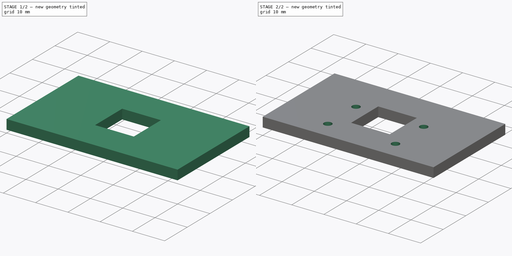
[diagram: build sequence overview — one tinted view per stage of 2, left to right]
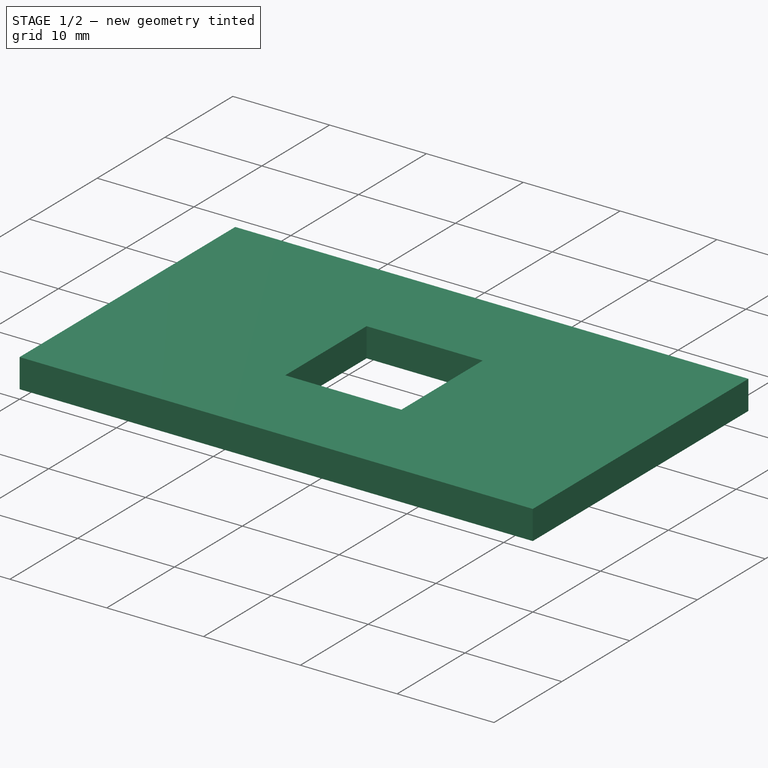
[diagram: stage 1 of 2 — iso view after this stage's code; geometry added in this stage tinted green]
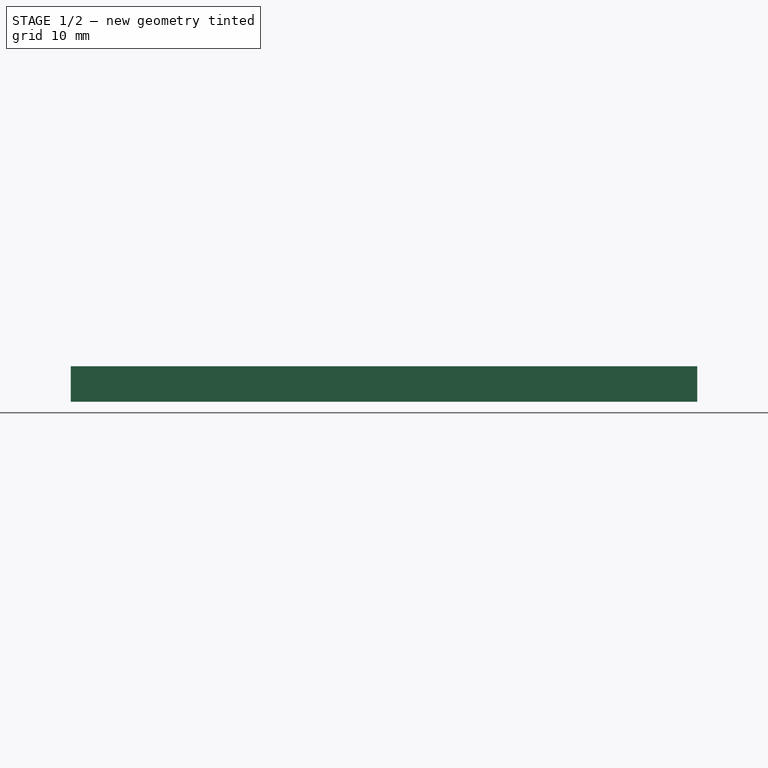
[diagram: stage 1 of 2 — front view after this stage's code; geometry added in this stage tinted green]
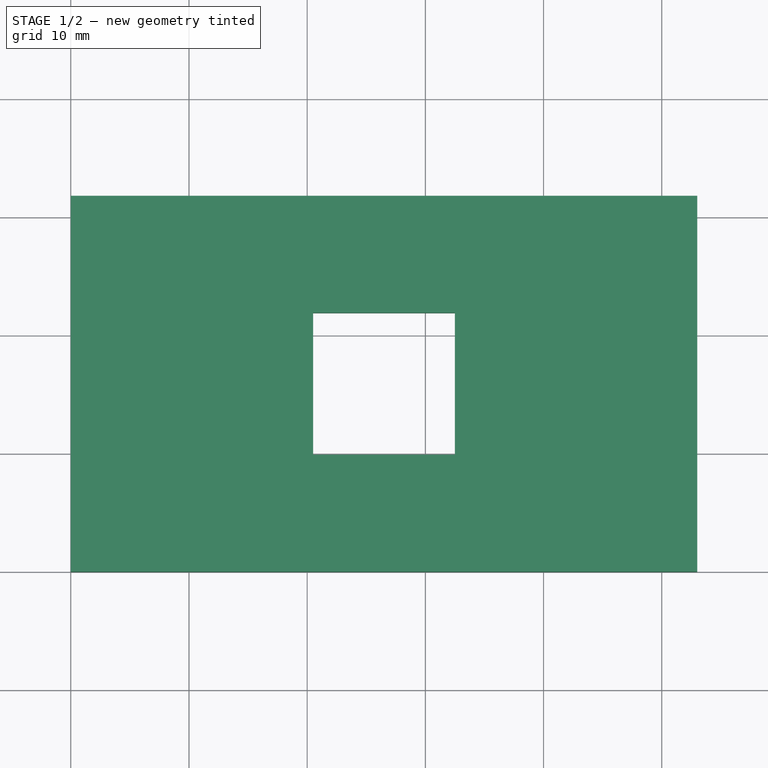
[diagram: stage 1 of 2 — top view after this stage's code; geometry added in this stage tinted green]
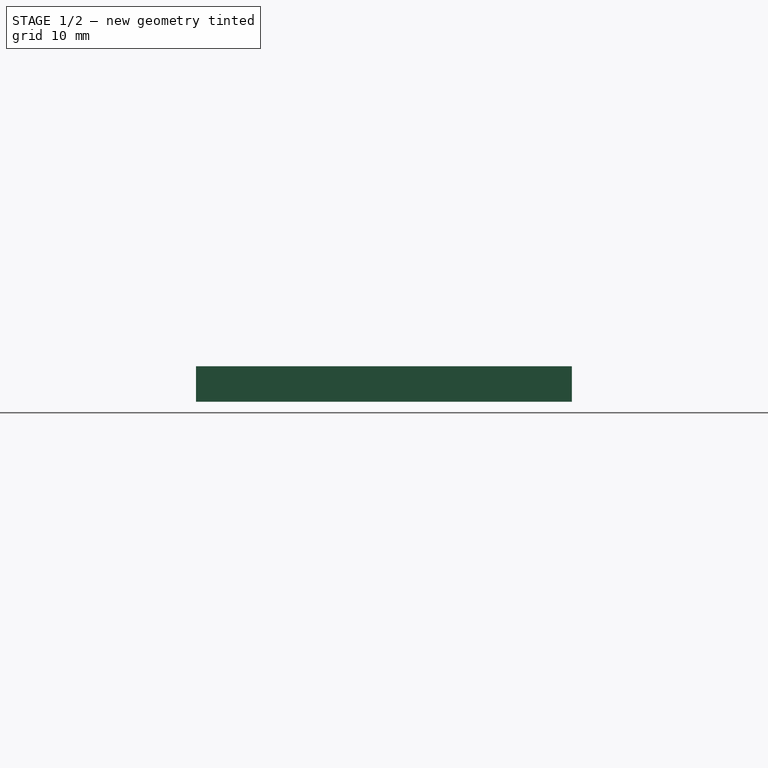
[diagram: stage 1 of 2 — right view after this stage's code; geometry added in this stage tinted green]
FCSTD DOCUMENT  (FreeCAD 1.0R39319 (Git))
Label: camera_plate
License: All rights reserved
LicenseURL: http://en.wikipedia.org/wiki/All_rights_reserved
objects: Sketcher::SketchObject×4, PartDesign::Pad×2, Spreadsheet::Sheet×1, PartDesign::Pocket×1, PartDesign::Hole×1, PartDesign::Body×1
note: 21 computed .brp shape members not serialized (recipe doc carries the construction recipe); baked Part::Feature solids carry a one-line shape summary decoded from their .brp

FEATURE [Sketcher::SketchObject] Sketch  label="camera_mnt_base"
  ArcFitTolerance = 1e-06
  AttachmentSupport = -> [XY_Plane]
  FullyConstrained = true
  MakeInternals = false
  MapMode = 5
  expr: Constraints[10] = Spreadsheet.x_len
  expr: Constraints[11] = Spreadsheet.y_len
  expr: Constraints[8] = Spreadsheet.xy_offset
  expr: Constraints[9] = Spreadsheet.xy_offset
  sketch-geometry (4):
    g0: LineSegment StartX=10 StartY=41.8 StartZ=0 EndX=10 EndY=10 EndZ=0
    g1: LineSegment StartX=10 StartY=10 StartZ=0 EndX=63 EndY=10 EndZ=0
    g2: LineSegment StartX=63 StartY=10 StartZ=0 EndX=63 EndY=41.8 EndZ=0
    g3: LineSegment StartX=63 StartY=41.8 StartZ=0 EndX=10 EndY=41.8 EndZ=0
  constraints (12):
    c: Coincident(g0,g1)
    c: Coincident(g1,g2)
    c: Coincident(g2,g3)
    c: Coincident(g3,g0)
    c: Vertical(g0)
    c: Vertical(g2)
    c: Horizontal(g1)
    c: Horizontal(g3)
    c: DistanceX(g-1,g0) = 10
    c: DistanceY(g-1,g0) = 10
    c: DistanceX(g0,g1) = 53
    c: DistanceY(g0,g0) = 31.8
FEATURE [Spreadsheet::Sheet] Spreadsheet
  cells = A1='screw_x; B1(screw_x)=21; A2='screw_y; B2(screw_y)=12.5; A3='x_len; B3(x_len)=53; A4='y_len; B4(y_len)=31.8; A5='cam_xy_cen; B5(cam_xy_cen)=12; A6='xy_offset; B6(xy_offset)=10; B7==10 + 53 / 2 - 10.8 / 2; B8==10 + 31.8 / 2 - 10.8 / 2; A9='diag_len; B9(diag_len)==sqrt(B7 * B7 + B8 * B8)
FEATURE [Sketcher::SketchObject] Sketch001  label="camera_center"
  ArcFitTolerance = 1e-06
  AttachmentSupport = -> [XY_Plane]
  FullyConstrained = true
  MakeInternals = false
  MapMode = 5
  expr: Constraints[10] = Spreadsheet.xy_offset + Spreadsheet.y_len / 2 - Spreadsheet.cam_xy_cen / 2
  expr: Constraints[11] = Spreadsheet.xy_offset + Spreadsheet.x_len / 2 - Spreadsheet.cam_xy_cen / 2
  expr: Constraints[8] = Spreadsheet.cam_xy_cen
  expr: Constraints[9] = Spreadsheet.cam_xy_cen
  sketch-geometry (4):
    g0: LineSegment StartX=30.5 StartY=31.9 StartZ=0 EndX=30.5 EndY=19.9 EndZ=0
    g1: LineSegment StartX=30.5 StartY=19.9 StartZ=0 EndX=42.5 EndY=19.9 EndZ=0
    g2: LineSegment StartX=42.5 StartY=19.9 StartZ=0 EndX=42.5 EndY=31.9 EndZ=0
    g3: LineSegment StartX=42.5 StartY=31.9 StartZ=0 EndX=30.5 EndY=31.9 EndZ=0
  constraints (12):
    c: Coincident(g0,g1)
    c: Coincident(g1,g2)
    c: Coincident(g2,g3)
    c: Coincident(g3,g0)
    c: Vertical(g0)
    c: Vertical(g2)
    c: Horizontal(g1)
    c: Horizontal(g3)
    c: DistanceX(g0,g2) = 12
    c: DistanceY(g1,g2) = 12
    c: DistanceY(g-1,g0) = 19.9
    c: DistanceX(g-1,g0) = 30.5
FEATURE [Sketcher::SketchObject] Sketch002  label="camera_holes"
  ArcFitTolerance = 1e-06
  AttachmentSupport = -> [XY_Plane]
  FullyConstrained = true
  MakeInternals = false
  MapMode = 5
  expr: Constraints[10] = Spreadsheet.xy_offset + 5.5
  expr: Constraints[11] = Spreadsheet.xy_offset + Spreadsheet.x_len / 2 - 21 / 2
  sketch-geometry (4):
    g0: Circle CenterX=26 CenterY=28 CenterZ=0 NormalX=0 NormalY=0 NormalZ=1 AngleXU=0 Radius=1.1
    g1: Circle CenterX=26 CenterY=15.5 CenterZ=0 NormalX=0 NormalY=0 NormalZ=1 AngleXU=0 Radius=1.1
    g2: Circle CenterX=47 CenterY=28 CenterZ=0 NormalX=0 NormalY=0 NormalZ=1 AngleXU=0 Radius=1.1
    g3: Circle CenterX=47 CenterY=15.5 CenterZ=0 NormalX=0 NormalY=0 NormalZ=1 AngleXU=0 Radius=1.1
  constraints (12):
    c: Equal(g1,g3)
    c: Equal(g3,g2)
    c: Equal(g2,g0)
    c: Diameter(g1) = 2.2
    c: Horizontal(g3,g1)
    c: Vertical(g1,g0)
    c: Vertical(g3,g2)
    c: DistanceX(g0,g2) = 21
    c: DistanceY(g3,g2) = 12.5
    c: Horizontal(g2,g0)
    c: DistanceY(g-1,g1) = 15.5
    c: DistanceX(g-1,g1) = 26
FEATURE [PartDesign::Pad] Pad
  Direction = (0,0,1)
  Length = 3
  Length2 = 10
  Profile = -> Sketch
  ReferenceAxis = -> Sketch [N_Axis]
  Suppressed = false
  Type = 0
FEATURE [PartDesign::Pocket] Pocket
  BaseFeature = -> Pad
  Direction = (0,0,-1)
  Length = 5
  Length2 = 5
  Profile = -> Sketch001
  ReferenceAxis = -> Sketch001 [N_Axis]
  Reversed = true
  Suppressed = false
  Type = 1
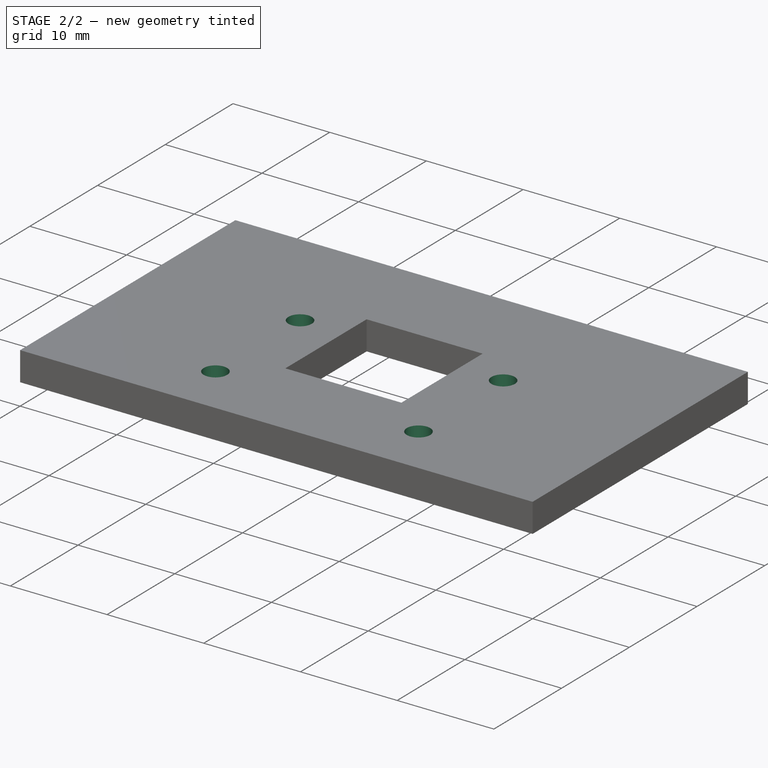
[diagram: stage 2 of 2 — iso view after this stage's code; geometry added in this stage tinted green]
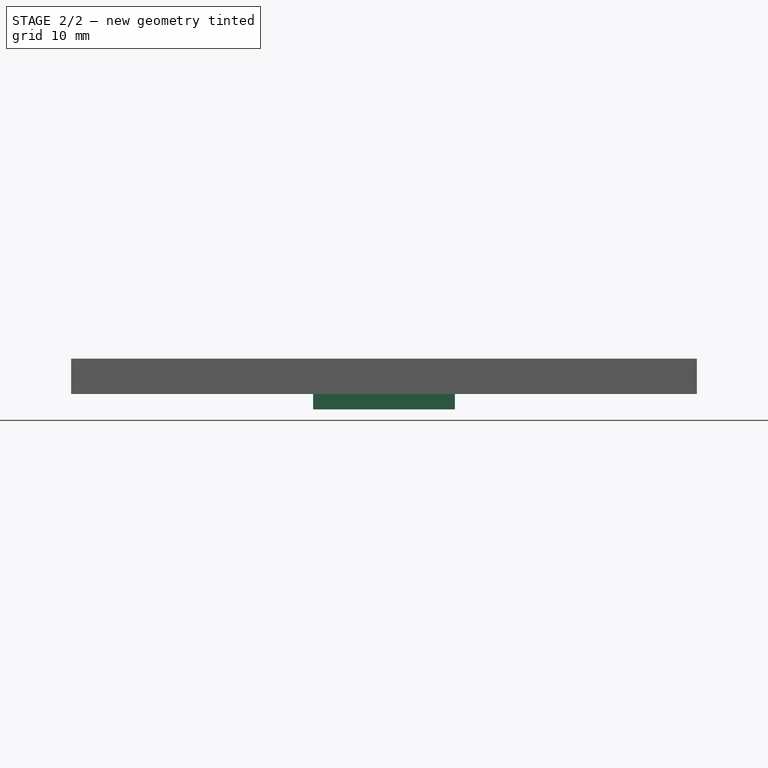
[diagram: stage 2 of 2 — front view after this stage's code; geometry added in this stage tinted green]
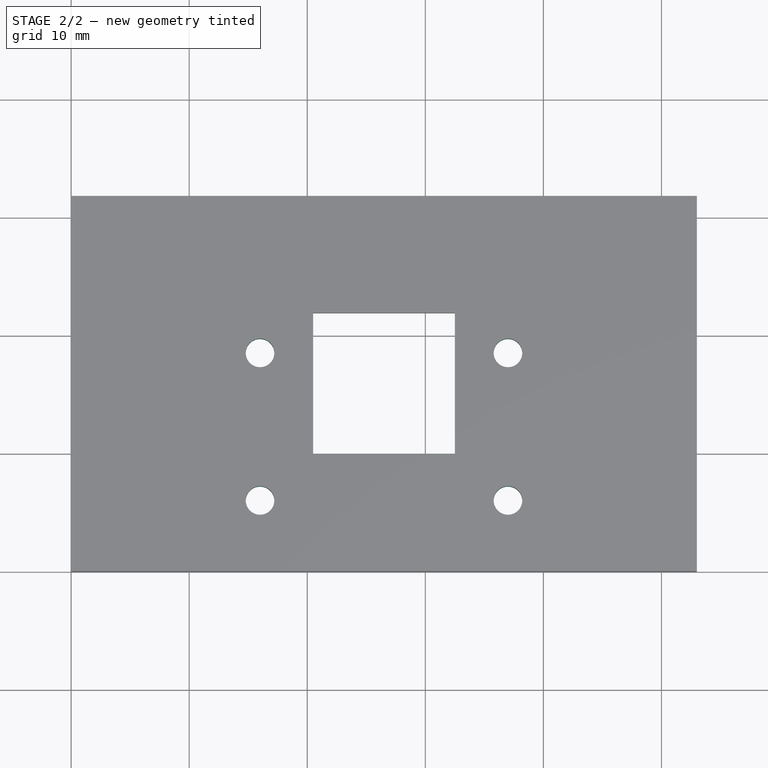
[diagram: stage 2 of 2 — top view after this stage's code; geometry added in this stage tinted green]
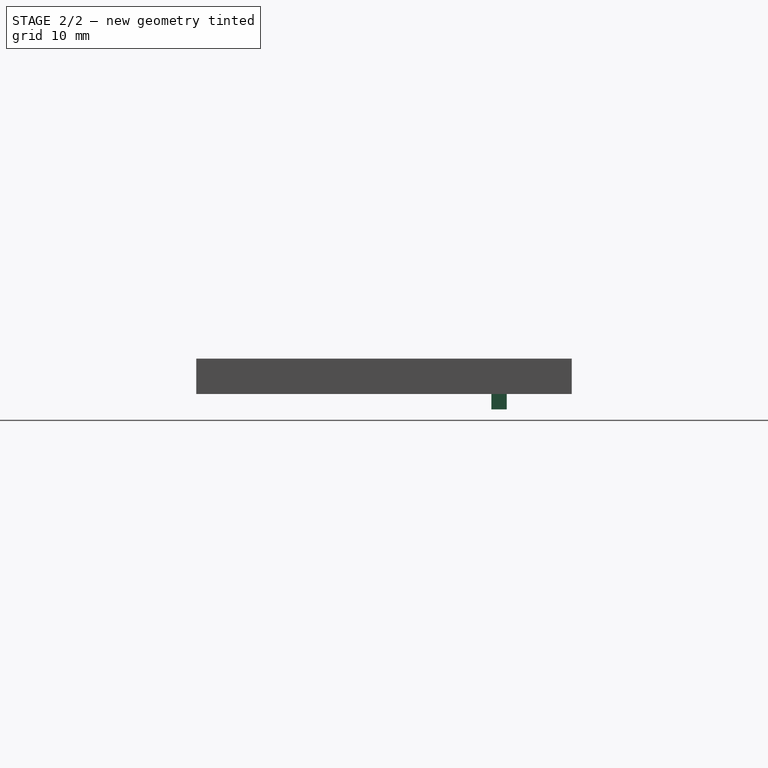
[diagram: stage 2 of 2 — right view after this stage's code; geometry added in this stage tinted green]
FEATURE [PartDesign::Hole] Hole
  BaseFeature = -> Pocket
  CustomThreadClearance = 0
  Depth = 124.999
  DepthType = 1
  Diameter = 2.42
  DrillForDepth = false
  DrillPoint = 1
  DrillPointAngle = 118
  HoleCutCountersinkAngle = 90
  HoleCutCustomValues = false
  HoleCutDepth = 0
  HoleCutDiameter = 6.1
  HoleCutType = 0
  ModelThread = false
  Profile = -> Sketch002
  Reversed = true
  Suppressed = false
  Tapered = false
  TaperedAngle = 90
  ThreadClass = 0
  ThreadDepth = 124.999
  ThreadDepthType = 0
  ThreadDirection = 0
  ThreadFit = 0
  ThreadSize = 7
  ThreadType = 1
  Threaded = false
  UseCustomThreadClearance = false
FEATURE [Sketcher::SketchObject] Sketch003
  ArcFitTolerance = 1e-06
  AttachmentSupport = -> [XY_Plane]
  FullyConstrained = true
  MakeInternals = false
  MapMode = 5
  expr: Constraints[8] = Spreadsheet.cam_xy_cen
  expr: Constraints[9] = Spreadsheet.xy_offset + Spreadsheet.x_len / 2 - Spreadsheet.cam_xy_cen / 2
  sketch-geometry (4):
    g0: LineSegment StartX=30.5 StartY=36.3 StartZ=0 EndX=30.5 EndY=35 EndZ=0
    g1: LineSegment StartX=30.5 StartY=35 StartZ=0 EndX=42.5 EndY=35 EndZ=0
    g2: LineSegment StartX=42.5 StartY=35 StartZ=0 EndX=42.5 EndY=36.3 EndZ=0
    g3: LineSegment StartX=42.5 StartY=36.3 StartZ=0 EndX=30.5 EndY=36.3 EndZ=0
  constraints (12):
    c: Coincident(g0,g1)
    c: Coincident(g1,g2)
    c: Coincident(g2,g3)
    c: Coincident(g3,g0)
    c: Vertical(g0)
    c: Vertical(g2)
    c: Horizontal(g1)
    c: Horizontal(g3)
    c: DistanceX(g0,g2) = 12
    c: DistanceX(g-1,g0) = 30.5
    c: DistanceY(g1,g2) = 1.3
    c: DistanceY(g-1,g0) = 35
FEATURE [PartDesign::Pad] Pad001
  BaseFeature = -> Hole
  Direction = (0,0,1)
  Length = 1.3
  Length2 = 10
  Profile = -> Sketch003
  ReferenceAxis = -> Sketch003 [N_Axis]
  Reversed = true
  Suppressed = false
  Type = 0
FEATURE [PartDesign::Body] Body
  AllowCompound = false
  Group = -> [Sketch,Sketch001,Sketch002,Pad,Pocket,Hole,Sketch003,Pad001]
  Origin = -> Origin
  Tip = -> Pad001
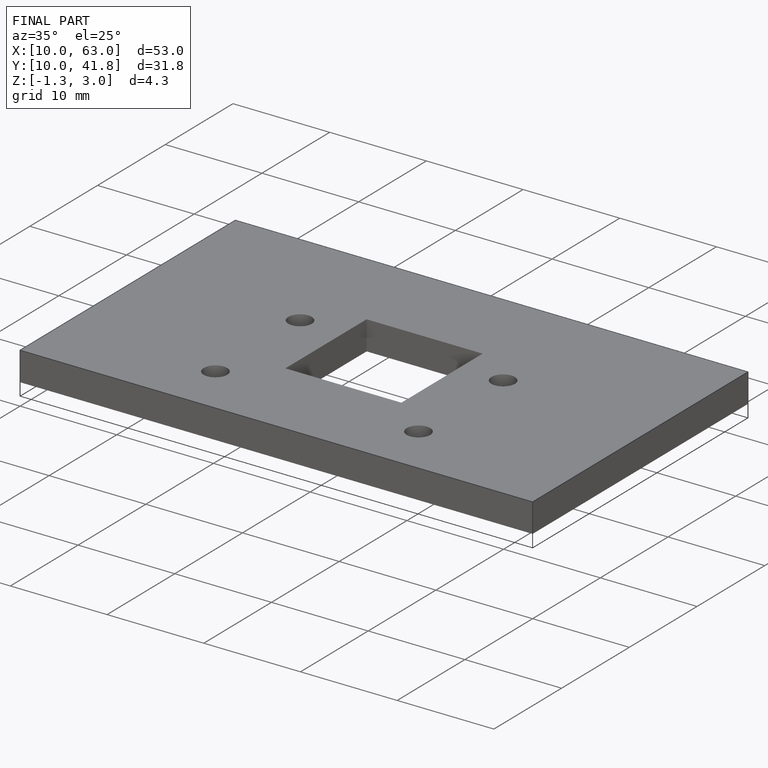
[diagram: finished part — iso view with bounding-box wireframe]
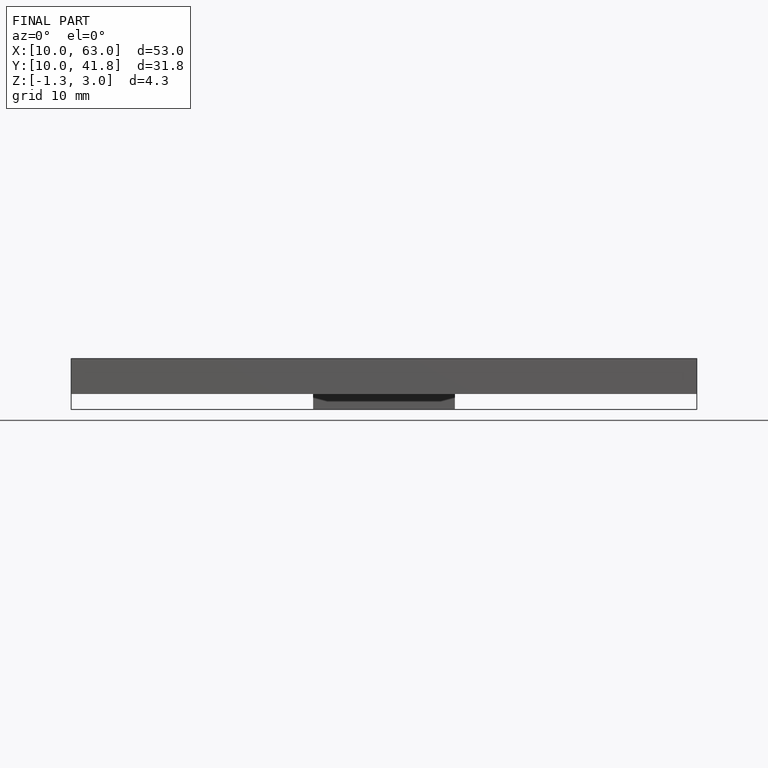
[diagram: finished part — front view with bounding-box wireframe]
